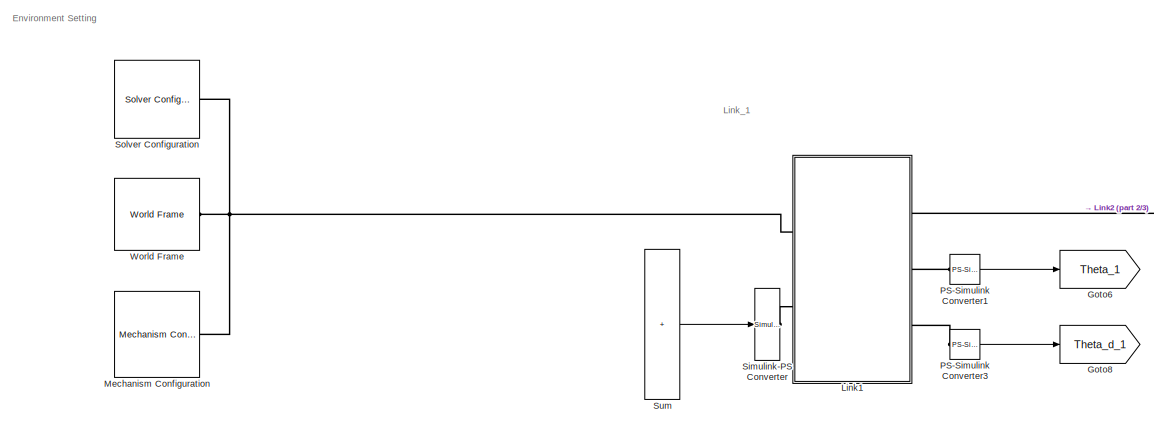
[diagram: root canvas - part 1/3, top left region]
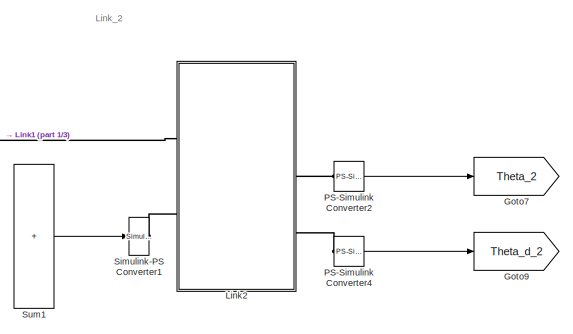
[diagram: root canvas - part 2/3, top right region]
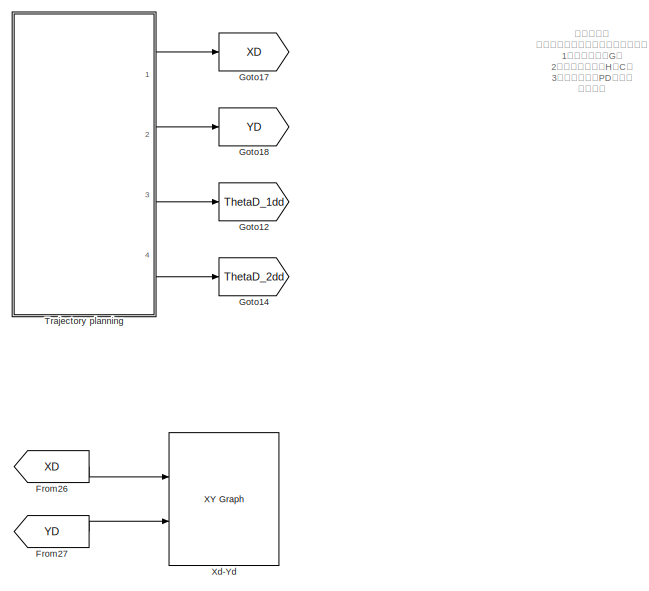
[diagram: root canvas - part 3/3, bottom left region]
MODEL slx_4ca949b3fca4
KIND model
CONFIG AbsTol = auto
CONFIG EnableMultiTasking = off
CONFIG FixedStep = auto
CONFIG MaxStep = auto
CONFIG MinStep = auto
CONFIG RelTol = 1e-3
CONFIG SampleTimeConstraint = Unconstrained
CONFIG Solver = VariableStepAuto
CONFIG SolverName = VariableStepAuto
CONFIG StartTime = 0.0
CONFIG StopTime = 10
BLOCK [From] From26
  GotoTag = XD
BLOCK [From] From27
  GotoTag = YD
BLOCK [Goto] Goto12
  GotoTag = ThetaD_1dd
BLOCK [Goto] Goto14
  GotoTag = ThetaD_2dd
BLOCK [Goto] Goto17
  GotoTag = XD
BLOCK [Goto] Goto18
  GotoTag = YD
BLOCK [Goto] Goto6
  GotoTag = Theta_1
BLOCK [Goto] Goto7
  GotoTag = Theta_2
BLOCK [Goto] Goto8
  GotoTag = Theta_d_1
BLOCK [Goto] Goto9
  GotoTag = Theta_d_2
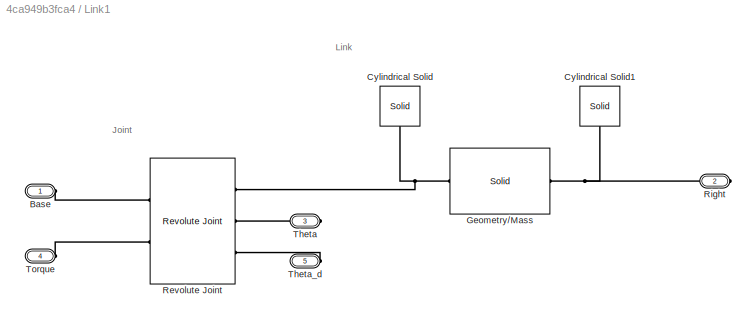
BLOCK [SubSystem] Link1
  Ports = [0, 0, 0, 0, 0, 2, 3]
BLOCK [PMIOPort] Link1/Base
  Side = Left
BLOCK [Reference] Link1/Cylindrical Solid  REF=sm_lib/Body Elements/Solid
  Ports = [0, 0, 0, 0, 0, 0, 1]
  SourceBlock = sm_lib/Body Elements/Solid
  SourceType = Cylindrical Solid
BLOCK [Reference] Link1/Cylindrical Solid1  REF=sm_lib/Body Elements/Solid
  Ports = [0, 0, 0, 0, 0, 0, 1]
  SourceBlock = sm_lib/Body Elements/Solid
  SourceType = Cylindrical Solid
BLOCK [Reference] Link1/Geometry//Mass  REF=sm_lib/Body Elements/Solid
  Ports = [0, 0, 0, 0, 0, 1, 1]
  SourceBlock = sm_lib/Body Elements/Solid
  SourceType = Brick Solid
BLOCK [Reference] Link1/Revolute Joint  REF=sm_lib/Joints/Revolute Joint
  Ports = [0, 0, 0, 0, 0, 2, 3]
  SourceBlock = sm_lib/Joints/Revolute Joint
  SourceType = Revolute Joint
BLOCK [PMIOPort] Link1/Right
  Port = 2
  Side = Right
BLOCK [PMIOPort] Link1/Theta
  Port = 3
  Side = Right
BLOCK [PMIOPort] Link1/Theta_d
  Port = 5
  Side = Right
BLOCK [PMIOPort] Link1/Torque
  Port = 4
  Side = Left
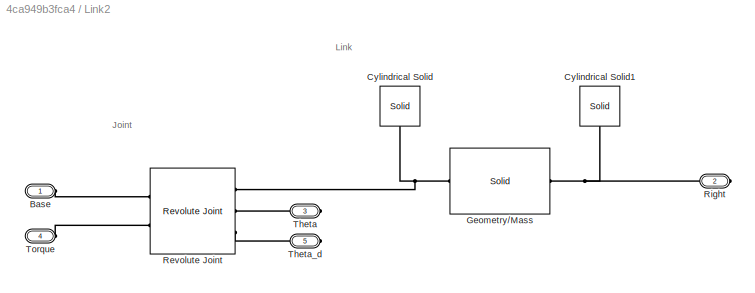
BLOCK [SubSystem] Link2
  Ports = [0, 0, 0, 0, 0, 2, 3]
BLOCK [PMIOPort] Link2/Base
  Side = Left
BLOCK [Reference] Link2/Cylindrical Solid  REF=sm_lib/Body Elements/Solid
  Ports = [0, 0, 0, 0, 0, 0, 1]
  SourceBlock = sm_lib/Body Elements/Solid
  SourceType = Cylindrical Solid
BLOCK [Reference] Link2/Cylindrical Solid1  REF=sm_lib/Body Elements/Solid
  Ports = [0, 0, 0, 0, 0, 0, 1]
  SourceBlock = sm_lib/Body Elements/Solid
  SourceType = Cylindrical Solid
BLOCK [Reference] Link2/Geometry//Mass  REF=sm_lib/Body Elements/Solid
  Ports = [0, 0, 0, 0, 0, 1, 1]
  SourceBlock = sm_lib/Body Elements/Solid
  SourceType = Brick Solid
BLOCK [Reference] Link2/Revolute Joint  REF=sm_lib/Joints/Revolute Joint
  Ports = [0, 0, 0, 0, 0, 2, 3]
  SourceBlock = sm_lib/Joints/Revolute Joint
  SourceType = Revolute Joint
BLOCK [PMIOPort] Link2/Right
  Port = 2
  Side = Right
BLOCK [PMIOPort] Link2/Theta
  Port = 3
  Side = Right
BLOCK [PMIOPort] Link2/Theta_d
  Port = 5
  Side = Right
BLOCK [PMIOPort] Link2/Torque
  Port = 4
  Side = Left
BLOCK [Reference] Mechanism Configuration  REF=sm_lib/Utilities/Mechanism
Configuration
  Ports = [0, 0, 0, 0, 0, 0, 1]
  SourceBlock = sm_lib/Utilities/Mechanism\nConfiguration
  SourceType = Mechanism\nConfiguration
BLOCK [Reference] PS-Simulink Converter1  REF=nesl_utility/PS-Simulink
Converter
  Ports = [0, 1, 0, 0, 0, 1]
  SourceBlock = nesl_utility/PS-Simulink\nConverter
  SourceType = PS-Simulink\nConverter
BLOCK [Reference] PS-Simulink Converter2  REF=nesl_utility/PS-Simulink
Converter
  Ports = [0, 1, 0, 0, 0, 1]
  SourceBlock = nesl_utility/PS-Simulink\nConverter
  SourceType = PS-Simulink\nConverter
BLOCK [Reference] PS-Simulink Converter3  REF=nesl_utility/PS-Simulink
Converter
  Ports = [0, 1, 0, 0, 0, 1]
  SourceBlock = nesl_utility/PS-Simulink\nConverter
  SourceType = PS-Simulink\nConverter
BLOCK [Reference] PS-Simulink Converter4  REF=nesl_utility/PS-Simulink
Converter
  Ports = [0, 1, 0, 0, 0, 1]
  SourceBlock = nesl_utility/PS-Simulink\nConverter
  SourceType = PS-Simulink\nConverter
BLOCK [Reference] Simulink-PS Converter  REF=nesl_utility/Simulink-PS
Converter
  Ports = [1, 0, 0, 0, 0, 0, 1]
  SourceBlock = nesl_utility/Simulink-PS\nConverter
  SourceType = Simulink-PS\nConverter
BLOCK [Reference] Simulink-PS Converter1  REF=nesl_utility/Simulink-PS
Converter
  Ports = [1, 0, 0, 0, 0, 0, 1]
  SourceBlock = nesl_utility/Simulink-PS\nConverter
  SourceType = Simulink-PS\nConverter
BLOCK [Reference] Solver Configuration  REF=nesl_utility/Solver
Configuration
  Ports = [0, 0, 0, 0, 0, 0, 1]
  SourceBlock = nesl_utility/Solver\nConfiguration
  SourceType = Solver\nConfiguration
BLOCK [Sum] Sum
  IconShape = rectangular
  Inputs = +++
  Ports = [3, 1]
BLOCK [Sum] Sum1
  IconShape = rectangular
  Inputs = +++
  Ports = [3, 1]
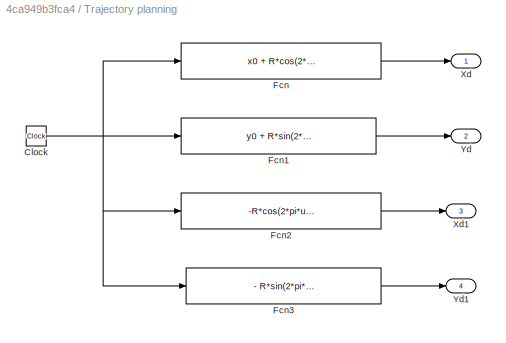
BLOCK [SubSystem] Trajectory planning
  Ports = [0, 4]
BLOCK [Clock] Trajectory planning/Clock
BLOCK [Fcn] Trajectory planning/Fcn
  Expr = x0 + R*cos(2*pi*u/T)
BLOCK [Fcn] Trajectory planning/Fcn1
  Expr = y0 + R*sin(2*pi*u/T )
BLOCK [Fcn] Trajectory planning/Fcn2
  Expr = -R*cos(2*pi*u/T)*(2*pi/5)^2
BLOCK [Fcn] Trajectory planning/Fcn3
  Expr = - R*sin(2*pi*u/T )*(2*pi/5)^2
BLOCK [Outport] Trajectory planning/Xd
  VectorParamsAs1DForOutWhenUnconnected = off
BLOCK [Outport] Trajectory planning/Xd1
  Port = 3
  VectorParamsAs1DForOutWhenUnconnected = off
BLOCK [Outport] Trajectory planning/Yd
  Port = 2
  VectorParamsAs1DForOutWhenUnconnected = off
BLOCK [Outport] Trajectory planning/Yd1
  Port = 4
  VectorParamsAs1DForOutWhenUnconnected = off
BLOCK [Reference] World Frame  REF=sm_lib/Frames and
Transforms/World Frame
  Ports = [0, 0, 0, 0, 0, 0, 1]
  SourceBlock = sm_lib/Frames and\nTransforms/World Frame
  SourceType = World Frame
BLOCK [Reference] Xd-Yd  REF=simulink/Sinks/XY Graph
  Ports = [2]
  SourceBlock = simulink/Sinks/XY Graph
  SourceType = XY scope.
ANNOTATION (root): 作业内容： 将上述两连杆机器人补全如下内容： 1）重力补偿（G） 2）非线性补偿（H，C） 3）独立关节的PD控制器 并实现： 4）关节的末端跟踪一个圆（已给出） 其中连杆的质量、惯量和长度已在模型中给出，同学们不要更改。 连杆关节的初始角度和初始角速度都已给出，如果有必要，可以更改。
ANNOTATION (root): Environment Setting
ANNOTATION (root): Link_1
ANNOTATION (root): Link_2
ANNOTATION Link1: Joint
ANNOTATION Link1: Link
ANNOTATION Link2: Joint
ANNOTATION Link2: Link
LINE From26:1 -> Xd-Yd:1
LINE From27:1 -> Xd-Yd:2
LINE PS-Simulink Converter1:1 -> Goto6:1
LINE PS-Simulink Converter2:1 -> Goto7:1
LINE PS-Simulink Converter3:1 -> Goto8:1
LINE PS-Simulink Converter4:1 -> Goto9:1
LINE Sum1:1 -> Simulink-PS Converter1:1
LINE Sum:1 -> Simulink-PS Converter:1
NET Trajectory planning/Clock:1 -> Trajectory planning/Fcn1:1, Trajectory planning/Fcn2:1, Trajectory planning/Fcn3:1, Trajectory planning/Fcn:1
LINE Trajectory planning/Fcn1:1 -> Trajectory planning/Yd:1
LINE Trajectory planning/Fcn2:1 -> Trajectory planning/Xd1:1
LINE Trajectory planning/Fcn3:1 -> Trajectory planning/Yd1:1
LINE Trajectory planning/Fcn:1 -> Trajectory planning/Xd:1
LINE Trajectory planning:1 -> Goto17:1
LINE Trajectory planning:2 -> Goto18:1
LINE Trajectory planning:3 -> Goto12:1
LINE Trajectory planning:4 -> Goto14:1
PLINE Link1/Base:RConn1 -- Link1/Revolute Joint:LConn1
PNET net1: Link1/Cylindrical Solid1:RConn1 -- Link1/Geometry//Mass:RConn1 -- Link1/Right:RConn1
PNET net2: Link1/Cylindrical Solid:RConn1 -- Link1/Geometry//Mass:LConn1 -- Link1/Revolute Joint:RConn1
PLINE Link1/Revolute Joint:LConn2 -- Link1/Torque:RConn1
PLINE Link1/Revolute Joint:RConn2 -- Link1/Theta:RConn1
PLINE Link1/Revolute Joint:RConn3 -- Link1/Theta_d:RConn1
PNET net3: Link1:LConn1 -- Mechanism Configuration:RConn1 -- Solver Configuration:RConn1 -- World Frame:RConn1
PLINE Link1:LConn2 -- Simulink-PS Converter:RConn1
PLINE Link1:RConn1 -- Link2:LConn1
PLINE Link1:RConn2 -- PS-Simulink Converter1:LConn1
PLINE Link1:RConn3 -- PS-Simulink Converter3:LConn1
PLINE Link2/Base:RConn1 -- Link2/Revolute Joint:LConn1
PNET net4: Link2/Cylindrical Solid1:RConn1 -- Link2/Geometry//Mass:RConn1 -- Link2/Right:RConn1
PNET net5: Link2/Cylindrical Solid:RConn1 -- Link2/Geometry//Mass:LConn1 -- Link2/Revolute Joint:RConn1
PLINE Link2/Revolute Joint:LConn2 -- Link2/Torque:RConn1
PLINE Link2/Revolute Joint:RConn2 -- Link2/Theta:RConn1
PLINE Link2/Revolute Joint:RConn3 -- Link2/Theta_d:RConn1
PLINE Link2:LConn2 -- Simulink-PS Converter1:RConn1
PLINE Link2:RConn2 -- PS-Simulink Converter2:LConn1
PLINE Link2:RConn3 -- PS-Simulink Converter4:LConn1
note: NET lines group one-source signal fan-out (src -> all destinations, sorted); 1:1 wires keep LINE; PNET lines group multi-terminal physical nets as a canonical sorted terminal list (undirected conserving connections); 2-terminal nets keep the pairwise PLINE form
